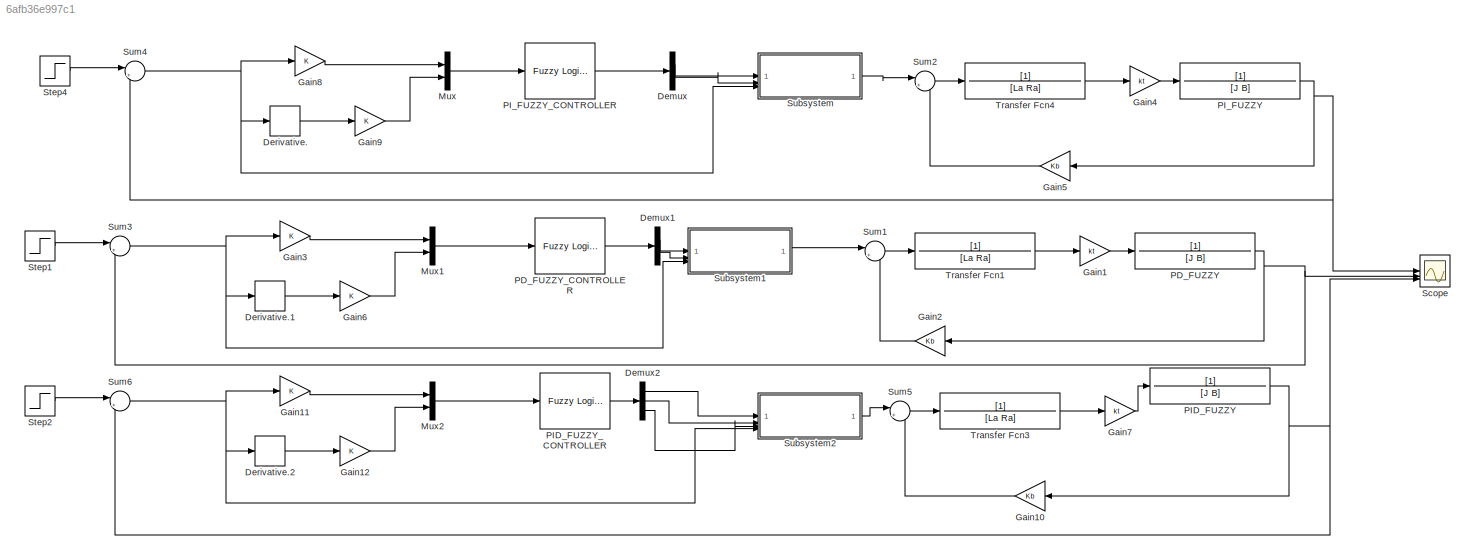
MODEL slx_6afb36e997c1
KIND model
CONFIG AbsTol = auto
CONFIG EnableMultiTasking = off
CONFIG FixedStep = auto
CONFIG MaxStep = auto
CONFIG MinStep = auto
CONFIG RelTol = 1e-3
CONFIG SampleTimeConstraint = Unconstrained
CONFIG SolverName = VariableStepAuto
CONFIG StartTime = 0.0
CONFIG StopTime = 10.0
BLOCK [Demux] Demux
  Outputs = 2
BLOCK [Demux] Demux1
  Outputs = 2
BLOCK [Demux] Demux2
  Outputs = 3
BLOCK [Derivative] Derivative.
BLOCK [Derivative] Derivative.1
BLOCK [Derivative] Derivative.2
BLOCK [Gain] Gain1
  Gain = kt
BLOCK [Gain] Gain10
  Gain = Kb
BLOCK [Gain] Gain11
BLOCK [Gain] Gain12
BLOCK [Gain] Gain2
  Gain = Kb
BLOCK [Gain] Gain3
BLOCK [Gain] Gain4
  Gain = kt
BLOCK [Gain] Gain5
  Gain = Kb
BLOCK [Gain] Gain6
BLOCK [Gain] Gain7
  Gain = kt
BLOCK [Gain] Gain8
BLOCK [Gain] Gain9
BLOCK [Mux] Mux
  DisplayOption = bar
  Inputs = 2
BLOCK [Mux] Mux1
  DisplayOption = bar
  Inputs = 2
BLOCK [Mux] Mux2
  DisplayOption = bar
  Inputs = 2
BLOCK [TransferFcn] PD_FUZZY
  Denominator = [J B]
BLOCK [Reference] PD_FUZZY_CONTROLLER  REF=fuzblock/Fuzzy Logic   (lib defined in mdl_858b3b3e7478)
Controller
  SourceBlock = fuzblock/Fuzzy Logic \nController
  SourceType = Fuzzy Inference System
BLOCK [TransferFcn] PID_FUZZY
  Denominator = [J B]
BLOCK [Reference] PID_FUZZY_CONTROLLER  REF=fuzblock/Fuzzy Logic   (lib defined in mdl_858b3b3e7478)
Controller
  SourceBlock = fuzblock/Fuzzy Logic \nController
  SourceType = Fuzzy Inference System
BLOCK [TransferFcn] PI_FUZZY
  Denominator = [J B]
BLOCK [Reference] PI_FUZZY_CONTROLLER  REF=fuzblock/Fuzzy Logic   (lib defined in mdl_858b3b3e7478)
Controller
  SourceBlock = fuzblock/Fuzzy Logic \nController
  SourceType = Fuzzy Inference System
BLOCK [Scope] Scope
  Floating = off
  NumInputPorts = 3
  ScopeSpecificationString = Simulink.scopes.TimeScopeBlockCfg('CurrentConfiguration', extmgr.ConfigurationSet(extmgr.Configuration('Core','General UI',true),extmgr.Configuration('Core','Source UI',true),extmgr.Configuration('Sources','WiredSimulink',true,'DataLoggingVariableName','ScopeData1'),extmgr.Configuration('Visuals','Time Domain',true,'SerializedDisplays',{struct('MinYLimReal','-0.13353','MaxYLimReal','1.20178','YLab...<+1729ch>
BLOCK [Step] Step1
  SampleTime = 0
BLOCK [Step] Step2
  SampleTime = 0
BLOCK [Step] Step4
  SampleTime = 0
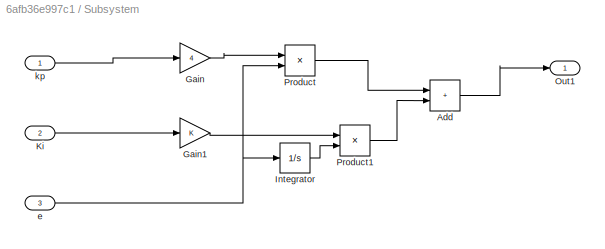
BLOCK [SubSystem] Subsystem
BLOCK [Sum] Subsystem/Add
  IconShape = rectangular
BLOCK [Gain] Subsystem/Gain
  Gain = 4
BLOCK [Gain] Subsystem/Gain1
BLOCK [Integrator] Subsystem/Integrator
BLOCK [Inport] Subsystem/Ki
  Port = 2
BLOCK [Outport] Subsystem/Out1
BLOCK [Product] Subsystem/Product
BLOCK [Product] Subsystem/Product1
BLOCK [Inport] Subsystem/e
  Port = 3
BLOCK [Inport] Subsystem/kp
  IconDisplay = Port number and signal name
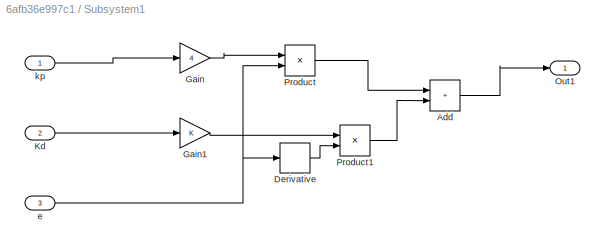
BLOCK [SubSystem] Subsystem1
BLOCK [Sum] Subsystem1/Add
  IconShape = rectangular
BLOCK [Derivative] Subsystem1/Derivative
BLOCK [Gain] Subsystem1/Gain
  Gain = 4
BLOCK [Gain] Subsystem1/Gain1
BLOCK [Inport] Subsystem1/Kd
  Port = 2
BLOCK [Outport] Subsystem1/Out1
BLOCK [Product] Subsystem1/Product
BLOCK [Product] Subsystem1/Product1
BLOCK [Inport] Subsystem1/e
  Port = 3
BLOCK [Inport] Subsystem1/kp
  IconDisplay = Port number and signal name
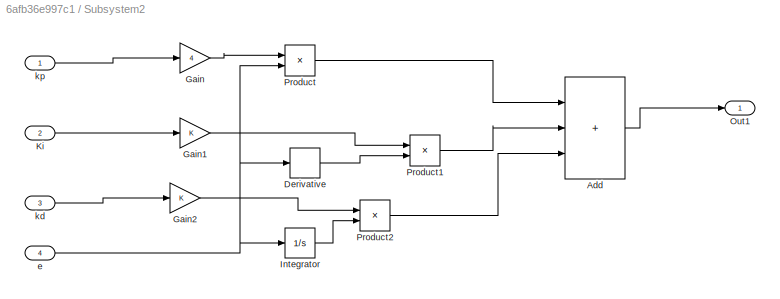
BLOCK [SubSystem] Subsystem2
BLOCK [Sum] Subsystem2/Add
  IconShape = rectangular
  Inputs = +++
BLOCK [Derivative] Subsystem2/Derivative
BLOCK [Gain] Subsystem2/Gain
  Gain = 4
BLOCK [Gain] Subsystem2/Gain1
BLOCK [Gain] Subsystem2/Gain2
BLOCK [Integrator] Subsystem2/Integrator
BLOCK [Inport] Subsystem2/Ki
  Port = 2
BLOCK [Outport] Subsystem2/Out1
BLOCK [Product] Subsystem2/Product
BLOCK [Product] Subsystem2/Product1
BLOCK [Product] Subsystem2/Product2
BLOCK [Inport] Subsystem2/e
  Port = 4
BLOCK [Inport] Subsystem2/kd
  Port = 3
BLOCK [Inport] Subsystem2/kp
  IconDisplay = Port number and signal name
BLOCK [Sum] Sum1
  Inputs = |+-
BLOCK [Sum] Sum2
  Inputs = |+-
BLOCK [Sum] Sum3
  Inputs = |+-
BLOCK [Sum] Sum4
  Inputs = |+-
BLOCK [Sum] Sum5
  Inputs = |+-
BLOCK [Sum] Sum6
  Inputs = |+-
BLOCK [TransferFcn] Transfer Fcn1
  Denominator = [La Ra]
BLOCK [TransferFcn] Transfer Fcn3
  Denominator = [La Ra]
BLOCK [TransferFcn] Transfer Fcn4
  Denominator = [La Ra]
LINE Demux1:1 -> Subsystem1:1
LINE Demux1:2 -> Subsystem1:2
LINE Demux2:1 -> Subsystem2:1
LINE Demux2:2 -> Subsystem2:2
LINE Demux2:3 -> Subsystem2:3
LINE Demux:1 -> Subsystem:1
LINE Demux:2 -> Subsystem:2
LINE Derivative.1:1 -> Gain6:1
LINE Derivative.2:1 -> Gain12:1
LINE Derivative.:1 -> Gain9:1
LINE Gain10:1 -> Sum5:2
LINE Gain11:1 -> Mux2:1
LINE Gain12:1 -> Mux2:2
LINE Gain1:1 -> PD_FUZZY:1
LINE Gain2:1 -> Sum1:2
LINE Gain3:1 -> Mux1:1
LINE Gain4:1 -> PI_FUZZY:1
LINE Gain5:1 -> Sum2:2
LINE Gain6:1 -> Mux1:2
LINE Gain7:1 -> PID_FUZZY:1
LINE Gain8:1 -> Mux:1
LINE Gain9:1 -> Mux:2
LINE Mux1:1 -> PD_FUZZY_CONTROLLER:1
LINE Mux2:1 -> PID_FUZZY_CONTROLLER:1
LINE Mux:1 -> PI_FUZZY_CONTROLLER:1
NET PD_FUZZY:1 -> Gain2:1, Scope:2, Sum3:2
LINE PD_FUZZY_CONTROLLER:1 -> Demux1:1
NET PID_FUZZY:1 -> Gain10:1, Scope:3, Sum6:2
LINE PID_FUZZY_CONTROLLER:1 -> Demux2:1
NET PI_FUZZY:1 -> Gain5:1, Scope:1, Sum4:2
LINE PI_FUZZY_CONTROLLER:1 -> Demux:1
LINE Step1:1 -> Sum3:1
LINE Step2:1 -> Sum6:1
LINE Step4:1 -> Sum4:1
LINE Subsystem/Add:1 -> Subsystem/Out1:1
LINE Subsystem/Gain1:1 -> Subsystem/Product1:1
LINE Subsystem/Gain:1 -> Subsystem/Product:1
LINE Subsystem/Integrator:1 -> Subsystem/Product1:2
LINE Subsystem/Ki:1 -> Subsystem/Gain1:1
LINE Subsystem/Product1:1 -> Subsystem/Add:2
LINE Subsystem/Product:1 -> Subsystem/Add:1
NET Subsystem/e:1 -> Subsystem/Integrator:1, Subsystem/Product:2
LINE Subsystem/kp:1 -> Subsystem/Gain:1
LINE Subsystem1/Add:1 -> Subsystem1/Out1:1
LINE Subsystem1/Derivative:1 -> Subsystem1/Product1:2
LINE Subsystem1/Gain1:1 -> Subsystem1/Product1:1
LINE Subsystem1/Gain:1 -> Subsystem1/Product:1
LINE Subsystem1/Kd:1 -> Subsystem1/Gain1:1
LINE Subsystem1/Product1:1 -> Subsystem1/Add:2
LINE Subsystem1/Product:1 -> Subsystem1/Add:1
NET Subsystem1/e:1 -> Subsystem1/Derivative:1, Subsystem1/Product:2
LINE Subsystem1/kp:1 -> Subsystem1/Gain:1
LINE Subsystem1:1 -> Sum1:1
LINE Subsystem2/Add:1 -> Subsystem2/Out1:1
LINE Subsystem2/Derivative:1 -> Subsystem2/Product1:2
LINE Subsystem2/Gain1:1 -> Subsystem2/Product1:1
LINE Subsystem2/Gain2:1 -> Subsystem2/Product2:1
LINE Subsystem2/Gain:1 -> Subsystem2/Product:1
LINE Subsystem2/Integrator:1 -> Subsystem2/Product2:2
LINE Subsystem2/Ki:1 -> Subsystem2/Gain1:1
LINE Subsystem2/Product1:1 -> Subsystem2/Add:2
LINE Subsystem2/Product2:1 -> Subsystem2/Add:3
LINE Subsystem2/Product:1 -> Subsystem2/Add:1
NET Subsystem2/e:1 -> Subsystem2/Derivative:1, Subsystem2/Integrator:1, Subsystem2/Product:2
LINE Subsystem2/kd:1 -> Subsystem2/Gain2:1
LINE Subsystem2/kp:1 -> Subsystem2/Gain:1
LINE Subsystem2:1 -> Sum5:1
LINE Subsystem:1 -> Sum2:1
LINE Sum1:1 -> Transfer Fcn1:1
LINE Sum2:1 -> Transfer Fcn4:1
NET Sum3:1 -> Derivative.1:1, Gain3:1, Subsystem1:3
NET Sum4:1 -> Derivative.:1, Gain8:1, Subsystem:3
LINE Sum5:1 -> Transfer Fcn3:1
NET Sum6:1 -> Derivative.2:1, Gain11:1, Subsystem2:4
LINE Transfer Fcn1:1 -> Gain1:1
LINE Transfer Fcn3:1 -> Gain7:1
LINE Transfer Fcn4:1 -> Gain4:1
note: NET lines group one-source signal fan-out (src -> all destinations, sorted); 1:1 wires keep LINE
